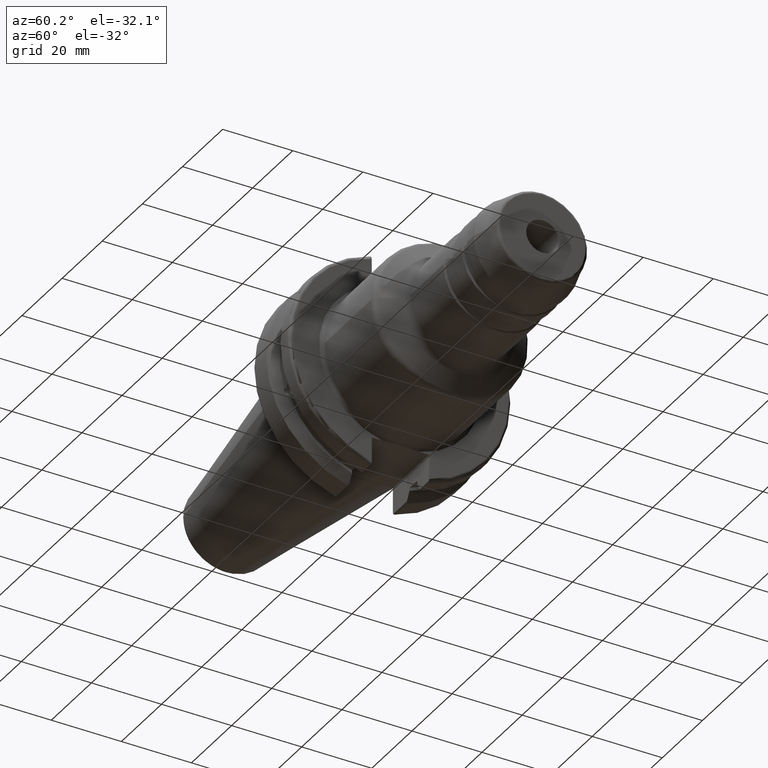
[diagram: clean part render]
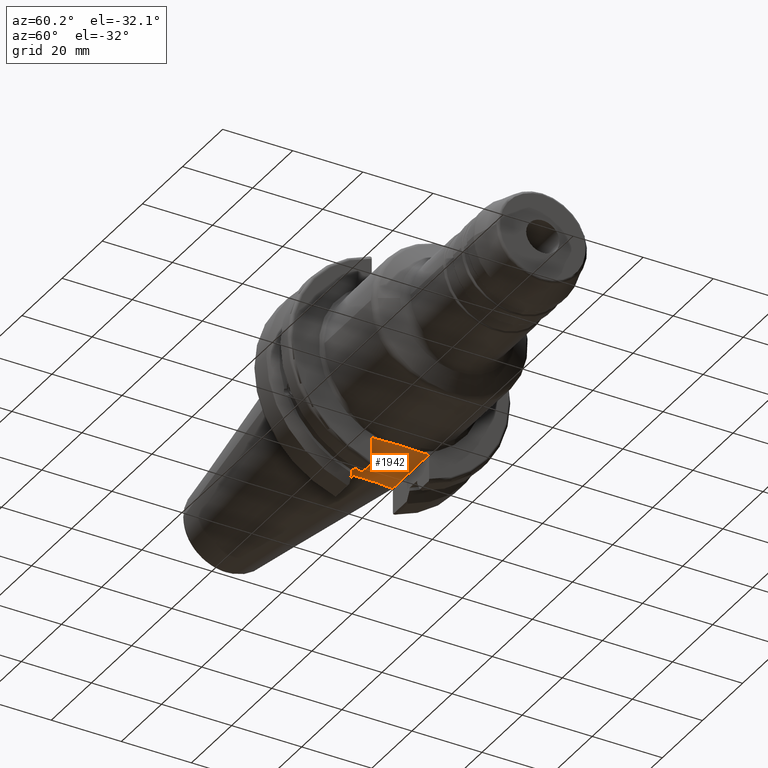
[diagram: same view with one face highlighted and labeled with its STEP entity id]
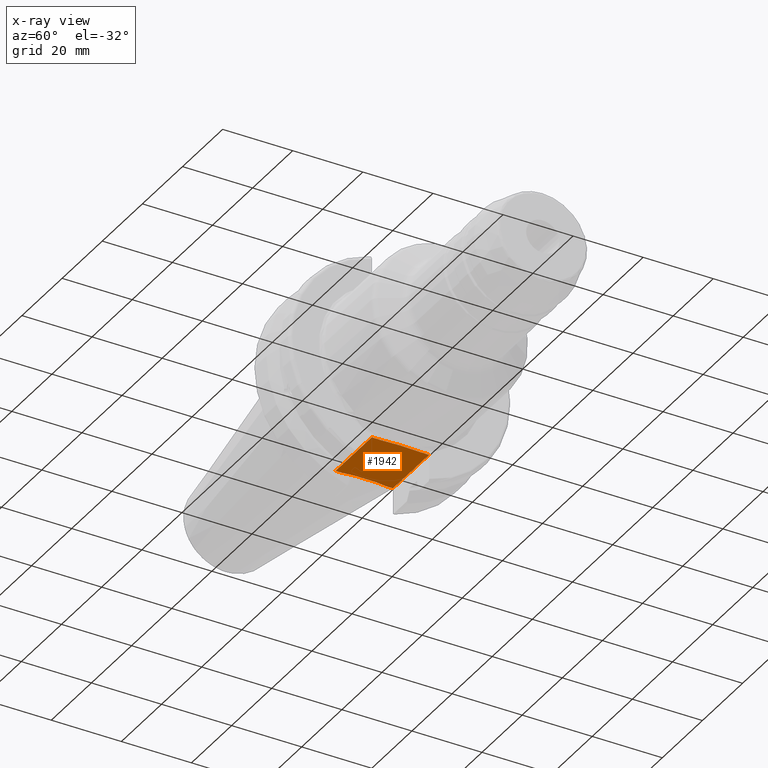
[diagram: x-ray of the same camera — body ghosted, the highlighted face saturated]
A machine part, auxiliary view. The second image highlights one B-rep face of the part: STEP entity #1942.
The next image is the same camera in x-ray: the body ghosted, the highlighted face saturated — about 0% of this face is hidden behind the body in this view.
In plain terms, the highlighted planar face has unit normal (0, 0, 1).
Its self-contained STEP definition (entity closure, byte-faithful):
#31=(
BOUNDED_CURVE()
B_SPLINE_CURVE(2,(#3765,#3766,#3767),.UNSPECIFIED.,.F.,.F.)
B_SPLINE_CURVE_WITH_KNOTS((3,3),(0.,0.339841691449478),.UNSPECIFIED.)
CURVE()
GEOMETRIC_REPRESENTATION_ITEM()
RATIONAL_B_SPLINE_CURVE((1.,1.00266518417082,1.))
REPRESENTATION_ITEM('')
);
#32=(
BOUNDED_CURVE()
B_SPLINE_CURVE(2,(#3770,#3771,#3772),.UNSPECIFIED.,.F.,.F.)
B_SPLINE_CURVE_WITH_KNOTS((3,3),(0.,0.339841691449478),.UNSPECIFIED.)
CURVE()
GEOMETRIC_REPRESENTATION_ITEM()
RATIONAL_B_SPLINE_CURVE((1.,1.00266518417082,1.))
REPRESENTATION_ITEM('')
);
#51=B_SPLINE_CURVE_WITH_KNOTS('',3,(#3010,#3011,#3012,#3013,#3014,#3015),
 .UNSPECIFIED.,.F.,.F.,(4,2,4),(1.72596271882624,2.07497455326111,2.23850423752741),
 .UNSPECIFIED.);
#52=B_SPLINE_CURVE_WITH_KNOTS('',3,(#3018,#3019,#3020,#3021,#3022,#3023),
 .UNSPECIFIED.,.F.,.F.,(4,2,4),(1.21342120012506,1.37695088439136,1.72596271882624),
 .UNSPECIFIED.);
#161=PLANE('',#2209);
#216=LINE('',#3523,#311);
#222=LINE('',#3535,#317);
#241=LINE('',#3641,#336);
#244=LINE('',#3670,#339);
#245=LINE('',#3673,#340);
#254=LINE('',#3739,#349);
#259=LINE('',#3769,#354);
#311=VECTOR('',#2662,10.);
#317=VECTOR('',#2670,10.);
#336=VECTOR('',#2701,10.);
#339=VECTOR('',#2714,10.);
#340=VECTOR('',#2717,10.);
#349=VECTOR('',#2764,10.);
#354=VECTOR('',#2787,10.);
#468=FACE_OUTER_BOUND('',#588,.T.);
#588=EDGE_LOOP('',(#1742,#1743,#1744,#1745,#1746,#1747,#1748,#1749,#1750,
#1751,#1752));
#793=VERTEX_POINT('',#3007);
#794=VERTEX_POINT('',#3009);
#795=VERTEX_POINT('',#3016);
#882=VERTEX_POINT('',#3522);
#887=VERTEX_POINT('',#3533);
#910=VERTEX_POINT('',#3639);
#914=VERTEX_POINT('',#3667);
#915=VERTEX_POINT('',#3669);
#916=VERTEX_POINT('',#3671);
#932=VERTEX_POINT('',#3764);
#933=VERTEX_POINT('',#3768);
#1014=EDGE_CURVE('',#794,#793,#51,.F.);
#1016=EDGE_CURVE('',#793,#795,#52,.F.);
#1137=EDGE_CURVE('',#794,#882,#216,.T.);
#1144=EDGE_CURVE('',#887,#795,#222,.T.);
#1175=EDGE_CURVE('',#910,#887,#241,.T.);
#1183=EDGE_CURVE('',#914,#915,#244,.T.);
#1185=EDGE_CURVE('',#916,#910,#245,.T.);
#1206=EDGE_CURVE('',#882,#914,#254,.T.);
#1216=EDGE_CURVE('',#932,#916,#31,.T.);
#1217=EDGE_CURVE('',#933,#932,#259,.T.);
#1218=EDGE_CURVE('',#915,#933,#32,.T.);
#1742=ORIENTED_EDGE('',*,*,#1144,.F.);
#1743=ORIENTED_EDGE('',*,*,#1175,.F.);
#1744=ORIENTED_EDGE('',*,*,#1185,.F.);
#1745=ORIENTED_EDGE('',*,*,#1216,.F.);
#1746=ORIENTED_EDGE('',*,*,#1217,.F.);
#1747=ORIENTED_EDGE('',*,*,#1218,.F.);
#1748=ORIENTED_EDGE('',*,*,#1183,.F.);
#1749=ORIENTED_EDGE('',*,*,#1206,.F.);
#1750=ORIENTED_EDGE('',*,*,#1137,.F.);
#1751=ORIENTED_EDGE('',*,*,#1014,.T.);
#1752=ORIENTED_EDGE('',*,*,#1016,.T.);
#1942=ADVANCED_FACE('',(#468),#161,.F.);
#2209=AXIS2_PLACEMENT_3D('',#3763,#2785,#2786);
#2662=DIRECTION('',(0.,1.,0.));
#2670=DIRECTION('',(0.,1.,0.));
#2701=DIRECTION('',(1.,0.,0.));
#2714=DIRECTION('',(0.,-1.,0.));
#2717=DIRECTION('',(0.,-1.,0.));
#2764=DIRECTION('',(-1.,-1.16558847729675E-16,0.));
#2785=DIRECTION('center_axis',(0.,0.,1.));
#2786=DIRECTION('ref_axis',(1.,0.,0.));
#2787=DIRECTION('',(0.,-1.,0.));
#3007=CARTESIAN_POINT('',(19.2900657923215,-1.52262876111465E-15,-22.6));
#3009=CARTESIAN_POINT('',(19.05,5.45916660306312,-22.6));
#3010=CARTESIAN_POINT('Ctrl Pts',(19.2900657923215,-4.16333634234434E-16,
-22.6));
#3011=CARTESIAN_POINT('Ctrl Pts',(19.2900657923215,1.16337278144958,-22.6));
#3012=CARTESIAN_POINT('Ctrl Pts',(19.1815308025276,2.55519472595254,-22.6));
#3013=CARTESIAN_POINT('Ctrl Pts',(19.0793249412955,4.26060658551474,-22.6));
#3014=CARTESIAN_POINT('Ctrl Pts',(19.05,4.9140676555088,-22.6));
#3015=CARTESIAN_POINT('Ctrl Pts',(19.05,5.45916660306312,-22.6));
#3016=CARTESIAN_POINT('',(19.05,-5.45916660306312,-22.6));
#3018=CARTESIAN_POINT('Ctrl Pts',(19.05,-5.45916660306312,-22.6));
#3019=CARTESIAN_POINT('Ctrl Pts',(19.05,-4.9140676555088,-22.6));
#3020=CARTESIAN_POINT('Ctrl Pts',(19.0793249412955,-4.26060658551474,-22.6));
#3021=CARTESIAN_POINT('Ctrl Pts',(19.1815308025276,-2.55519472595254,-22.6));
#3022=CARTESIAN_POINT('Ctrl Pts',(19.2900657923215,-1.16337278144958,-22.6));
#3023=CARTESIAN_POINT('Ctrl Pts',(19.2900657923215,5.55111512312578E-16,
-22.6));
#3522=CARTESIAN_POINT('',(19.05,8.19,-22.6));
#3523=CARTESIAN_POINT('',(19.05,-2.77555756156289E-16,-22.6));
#3533=CARTESIAN_POINT('',(19.05,-8.19,-22.6));
#3535=CARTESIAN_POINT('',(19.05,-2.77555756156289E-16,-22.6));
#3639=CARTESIAN_POINT('',(1.,-8.19,-22.6));
#3641=CARTESIAN_POINT('',(1.,-8.19,-22.6));
#3667=CARTESIAN_POINT('',(0.999999999999998,8.19,-22.6));
#3669=CARTESIAN_POINT('',(0.999999999999997,6.4412731660752,-22.6));
#3670=CARTESIAN_POINT('',(1.,15.875,-22.6));
#3671=CARTESIAN_POINT('',(1.,-6.44127316607517,-22.6));
#3673=CARTESIAN_POINT('',(1.,15.875,-22.6));
#3739=CARTESIAN_POINT('',(20.05,8.19,-22.6));
#3763=CARTESIAN_POINT('Origin',(14.62,-5.55111512312578E-16,-22.6));
#3764=CARTESIAN_POINT('',(1.4,-3.06715581894774,-22.6));
#3765=CARTESIAN_POINT('Ctrl Pts',(1.4,-3.06715581894779,-22.6));
#3766=CARTESIAN_POINT('Ctrl Pts',(1.27097107950098,-4.72897372977579,-22.6));
#3767=CARTESIAN_POINT('Ctrl Pts',(0.999999999999999,-6.44127316607519,-22.6));
#3768=CARTESIAN_POINT('',(1.4,3.06715581894774,-22.6));
#3769=CARTESIAN_POINT('',(1.4,11.4035898384862,-22.6));
#3770=CARTESIAN_POINT('Ctrl Pts',(0.999999999999999,6.44127316607519,-22.6));
#3771=CARTESIAN_POINT('Ctrl Pts',(1.27097107950098,4.72897372977579,-22.6));
#3772=CARTESIAN_POINT('Ctrl Pts',(1.4,3.06715581894779,-22.6));